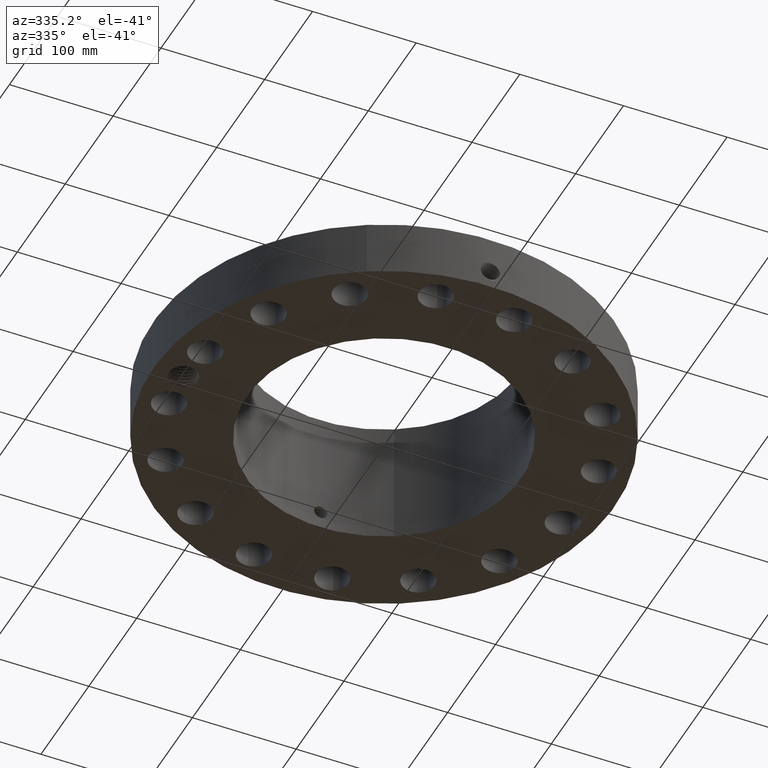
[diagram: clean part render]
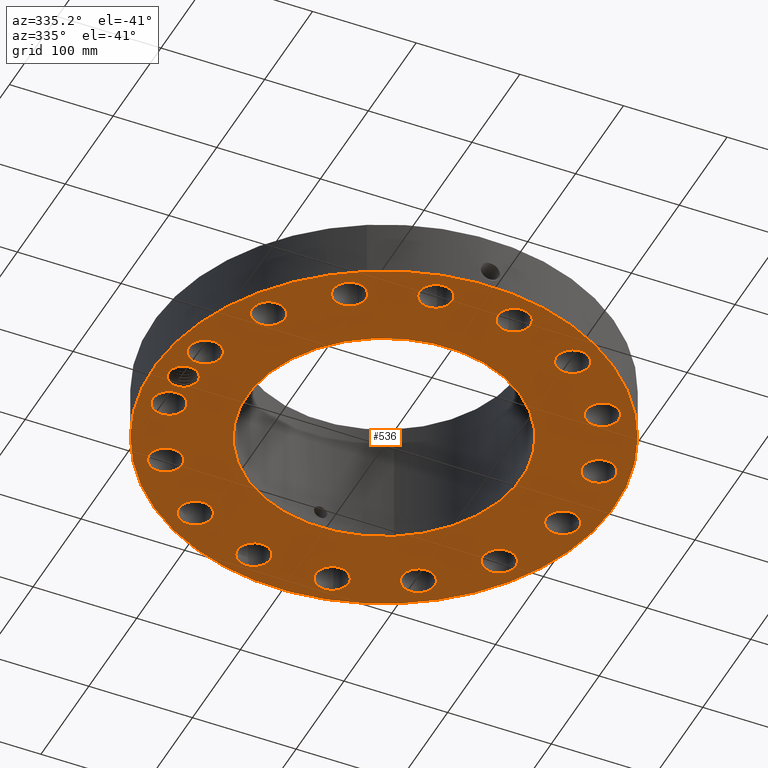
[diagram: same view with one face highlighted and labeled with its STEP entity id]
A machine part, auxiliary view. The second image highlights one B-rep face of the part: STEP entity #536.
In plain terms, the highlighted planar face has unit normal (0, 0, -1).
Its self-contained STEP definition (entity closure, byte-faithful):
#42=AXIS2_PLACEMENT_3D('Circle Axis2P3D',#40,#41,$) ;
#165=AXIS2_PLACEMENT_3D('Plane Axis2P3D',#162,#163,#164) ;
#169=AXIS2_PLACEMENT_3D('Circle Axis2P3D',#167,#168,$) ;
#178=AXIS2_PLACEMENT_3D('Circle Axis2P3D',#176,#177,$) ;
#187=AXIS2_PLACEMENT_3D('Circle Axis2P3D',#185,#186,$) ;
#194=AXIS2_PLACEMENT_3D('Circle Axis2P3D',#192,#193,$) ;
#232=AXIS2_PLACEMENT_3D('Circle Axis2P3D',#230,#231,$) ;
#241=AXIS2_PLACEMENT_3D('Circle Axis2P3D',#239,#240,$) ;
#250=AXIS2_PLACEMENT_3D('Circle Axis2P3D',#248,#249,$) ;
#259=AXIS2_PLACEMENT_3D('Circle Axis2P3D',#257,#258,$) ;
#268=AXIS2_PLACEMENT_3D('Circle Axis2P3D',#266,#267,$) ;
#277=AXIS2_PLACEMENT_3D('Circle Axis2P3D',#275,#276,$) ;
#286=AXIS2_PLACEMENT_3D('Circle Axis2P3D',#284,#285,$) ;
#295=AXIS2_PLACEMENT_3D('Circle Axis2P3D',#293,#294,$) ;
#304=AXIS2_PLACEMENT_3D('Circle Axis2P3D',#302,#303,$) ;
#313=AXIS2_PLACEMENT_3D('Circle Axis2P3D',#311,#312,$) ;
#322=AXIS2_PLACEMENT_3D('Circle Axis2P3D',#320,#321,$) ;
#331=AXIS2_PLACEMENT_3D('Circle Axis2P3D',#329,#330,$) ;
#340=AXIS2_PLACEMENT_3D('Circle Axis2P3D',#338,#339,$) ;
#349=AXIS2_PLACEMENT_3D('Circle Axis2P3D',#347,#348,$) ;
#358=AXIS2_PLACEMENT_3D('Circle Axis2P3D',#356,#357,$) ;
#367=AXIS2_PLACEMENT_3D('Circle Axis2P3D',#365,#366,$) ;
#376=AXIS2_PLACEMENT_3D('Circle Axis2P3D',#374,#375,$) ;
#385=AXIS2_PLACEMENT_3D('Circle Axis2P3D',#383,#384,$) ;
#394=AXIS2_PLACEMENT_3D('Circle Axis2P3D',#392,#393,$) ;
#403=AXIS2_PLACEMENT_3D('Circle Axis2P3D',#401,#402,$) ;
#412=AXIS2_PLACEMENT_3D('Circle Axis2P3D',#410,#411,$) ;
#421=AXIS2_PLACEMENT_3D('Circle Axis2P3D',#419,#420,$) ;
#430=AXIS2_PLACEMENT_3D('Circle Axis2P3D',#428,#429,$) ;
#439=AXIS2_PLACEMENT_3D('Circle Axis2P3D',#437,#438,$) ;
#448=AXIS2_PLACEMENT_3D('Circle Axis2P3D',#446,#447,$) ;
#457=AXIS2_PLACEMENT_3D('Circle Axis2P3D',#455,#456,$) ;
#466=AXIS2_PLACEMENT_3D('Circle Axis2P3D',#464,#465,$) ;
#475=AXIS2_PLACEMENT_3D('Circle Axis2P3D',#473,#474,$) ;
#484=AXIS2_PLACEMENT_3D('Circle Axis2P3D',#482,#483,$) ;
#493=AXIS2_PLACEMENT_3D('Circle Axis2P3D',#491,#492,$) ;
#502=AXIS2_PLACEMENT_3D('Circle Axis2P3D',#500,#501,$) ;
#511=AXIS2_PLACEMENT_3D('Circle Axis2P3D',#509,#510,$) ;
#520=AXIS2_PLACEMENT_3D('Circle Axis2P3D',#518,#519,$) ;
#529=AXIS2_PLACEMENT_3D('Circle Axis2P3D',#527,#528,$) ;
#40=CARTESIAN_POINT('Axis2P3D Location',(0.,0.,0.250000000001)) ;
#44=CARTESIAN_POINT('Vertex',(-4.1949734628,-7.67884741657,0.250000000001)) ;
#46=CARTESIAN_POINT('Vertex',(4.1949734628,7.67884741657,0.250000000001)) ;
#162=CARTESIAN_POINT('Axis2P3D Location',(0.,5.21000000002,0.250000000001)) ;
#167=CARTESIAN_POINT('Axis2P3D Location',(0.,0.,0.250000000001)) ;
#176=CARTESIAN_POINT('Axis2P3D Location',(-7.62500000003,-2.23792987641E-015,0.250000000001)) ;
#180=CARTESIAN_POINT('Vertex',(-8.10959231488,0.264733988163,0.250000000001)) ;
#182=CARTESIAN_POINT('Vertex',(-7.56480221872,0.548898918953,0.250000000001)) ;
#185=CARTESIAN_POINT('Axis2P3D Location',(-7.62500000003,-2.23792987641E-015,0.250000000001)) ;
#189=CARTESIAN_POINT('Vertex',(-7.14040768518,-0.264733988163,0.250000000001)) ;
#192=CARTESIAN_POINT('Axis2P3D Location',(-7.62500000003,-2.23792987641E-015,0.250000000001)) ;
#196=CARTESIAN_POINT('Vertex',(-7.15516984689,0.290126564287,0.250000000001)) ;
#200=CARTESIAN_POINT('Control Point',(-7.32448377518,0.475495884074,0.250000000001)) ;
#201=CARTESIAN_POINT('Control Point',(-7.28443485453,0.447862629432,0.250000000001)) ;
#202=CARTESIAN_POINT('Control Point',(-7.24746086426,0.415953993353,0.250000000001)) ;
#203=CARTESIAN_POINT('Control Point',(-7.21418057762,0.380212204736,0.250000000001)) ;
#204=CARTESIAN_POINT('Control Point',(-7.18379409289,0.339445970979,0.250000000001)) ;
#205=CARTESIAN_POINT('Control Point',(-7.1584276856,0.295855344864,0.250000000001)) ;
#206=CARTESIAN_POINT('Control Point',(-7.15733212918,0.29395096508,0.250000000001)) ;
#207=CARTESIAN_POINT('Control Point',(-7.1562461715,0.292041350384,0.250000000001)) ;
#208=CARTESIAN_POINT('Control Point',(-7.15516984689,0.290126564287,0.250000000001)) ;
#209=CARTESIAN_POINT('Vertex',(-7.32448377518,0.475495884074,0.250000000001)) ;
#213=CARTESIAN_POINT('Control Point',(-7.32448377518,0.475495884074,0.250000000001)) ;
#214=CARTESIAN_POINT('Control Point',(-7.34133991202,0.485220250308,0.250000000001)) ;
#215=CARTESIAN_POINT('Control Point',(-7.3586037324,0.494207507439,0.250000000001)) ;
#216=CARTESIAN_POINT('Control Point',(-7.37623279983,0.502434015486,0.250000000001)) ;
#217=CARTESIAN_POINT('Control Point',(-7.42320261231,0.521916486492,0.250000000001)) ;
#218=CARTESIAN_POINT('Control Point',(-7.47203883605,0.535939978592,0.250000000001)) ;
#219=CARTESIAN_POINT('Control Point',(-7.50272461,0.542452713745,0.250000000001)) ;
#220=CARTESIAN_POINT('Control Point',(-7.53371493089,0.546775207008,0.250000000001)) ;
#221=CARTESIAN_POINT('Control Point',(-7.56480221872,0.548898918953,0.250000000001)) ;
#230=CARTESIAN_POINT('Axis2P3D Location',(7.4784877631,-1.48756370538,0.250000000001)) ;
#234=CARTESIAN_POINT('Vertex',(8.02697686429,-1.78720466701,0.250000000001)) ;
#236=CARTESIAN_POINT('Vertex',(6.92999866192,-1.18792274375,0.250000000001)) ;
#239=CARTESIAN_POINT('Axis2P3D Location',(7.4784877631,-1.48756370538,0.250000000001)) ;
#248=CARTESIAN_POINT('Axis2P3D Location',(0.,0.,0.250000000001)) ;
#252=CARTESIAN_POINT('Vertex',(2.49780705614,4.57220514747,0.250000000001)) ;
#254=CARTESIAN_POINT('Vertex',(-2.49780705614,-4.57220514747,0.250000000001)) ;
#257=CARTESIAN_POINT('Axis2P3D Location',(0.,0.,0.250000000001)) ;
#266=CARTESIAN_POINT('Axis2P3D Location',(6.33995579383,-4.23622302679,0.250000000001)) ;
#270=CARTESIAN_POINT('Vertex',(5.94788557112,-3.74949318338,0.250000000001)) ;
#272=CARTESIAN_POINT('Vertex',(6.73202601655,-4.7229528702,0.250000000001)) ;
#275=CARTESIAN_POINT('Axis2P3D Location',(6.33995579383,-4.23622302679,0.250000000001)) ;
#284=CARTESIAN_POINT('Axis2P3D Location',(4.23622302679,-6.33995579383,0.250000000001)) ;
#288=CARTESIAN_POINT('Vertex',(4.06026081983,-5.74023727509,0.250000000001)) ;
#290=CARTESIAN_POINT('Vertex',(4.41218523376,-6.93967431258,0.250000000001)) ;
#293=CARTESIAN_POINT('Axis2P3D Location',(4.23622302679,-6.33995579383,0.250000000001)) ;
#302=CARTESIAN_POINT('Axis2P3D Location',(1.48756370538,-7.4784877631,0.250000000001)) ;
#306=CARTESIAN_POINT('Vertex',(1.55449816507,-6.85708227704,0.250000000001)) ;
#308=CARTESIAN_POINT('Vertex',(1.42062924568,-8.09989324917,0.250000000001)) ;
#311=CARTESIAN_POINT('Axis2P3D Location',(1.48756370538,-7.4784877631,0.250000000001)) ;
#320=CARTESIAN_POINT('Axis2P3D Location',(-1.48756370538,-7.4784877631,0.250000000001)) ;
#324=CARTESIAN_POINT('Vertex',(-1.18792274375,-6.92999866192,0.250000000001)) ;
#326=CARTESIAN_POINT('Vertex',(-1.78720466701,-8.02697686429,0.250000000001)) ;
#329=CARTESIAN_POINT('Axis2P3D Location',(-1.48756370538,-7.4784877631,0.250000000001)) ;
#338=CARTESIAN_POINT('Axis2P3D Location',(-4.23622302679,-6.33995579383,0.250000000001)) ;
#342=CARTESIAN_POINT('Vertex',(-3.74949318338,-5.94788557112,0.250000000001)) ;
#344=CARTESIAN_POINT('Vertex',(-4.7229528702,-6.73202601655,0.250000000001)) ;
#347=CARTESIAN_POINT('Axis2P3D Location',(-4.23622302679,-6.33995579383,0.250000000001)) ;
#356=CARTESIAN_POINT('Axis2P3D Location',(-6.33995579383,-4.23622302679,0.250000000001)) ;
#360=CARTESIAN_POINT('Vertex',(-5.74023727509,-4.06026081983,0.250000000001)) ;
#362=CARTESIAN_POINT('Vertex',(-6.93967431258,-4.41218523376,0.250000000001)) ;
#365=CARTESIAN_POINT('Axis2P3D Location',(-6.33995579383,-4.23622302679,0.250000000001)) ;
#374=CARTESIAN_POINT('Axis2P3D Location',(-7.4784877631,-1.48756370538,0.250000000001)) ;
#378=CARTESIAN_POINT('Vertex',(-6.85708227704,-1.55449816507,0.250000000001)) ;
#380=CARTESIAN_POINT('Vertex',(-8.09989324917,-1.42062924568,0.250000000001)) ;
#383=CARTESIAN_POINT('Axis2P3D Location',(-7.4784877631,-1.48756370538,0.250000000001)) ;
#392=CARTESIAN_POINT('Axis2P3D Location',(-7.4784877631,1.48756370538,0.250000000001)) ;
#396=CARTESIAN_POINT('Vertex',(-6.92999866192,1.18792274375,0.250000000001)) ;
#398=CARTESIAN_POINT('Vertex',(-8.02697686429,1.78720466701,0.250000000001)) ;
#401=CARTESIAN_POINT('Axis2P3D Location',(-7.4784877631,1.48756370538,0.250000000001)) ;
#410=CARTESIAN_POINT('Axis2P3D Location',(-6.33995579383,4.23622302679,0.250000000001)) ;
#414=CARTESIAN_POINT('Vertex',(-5.94788557112,3.74949318338,0.250000000001)) ;
#416=CARTESIAN_POINT('Vertex',(-6.73202601655,4.7229528702,0.250000000001)) ;
#419=CARTESIAN_POINT('Axis2P3D Location',(-6.33995579383,4.23622302679,0.250000000001)) ;
#428=CARTESIAN_POINT('Axis2P3D Location',(-4.23622302679,6.33995579383,0.250000000001)) ;
#432=CARTESIAN_POINT('Vertex',(-4.06026081983,5.74023727509,0.250000000001)) ;
#434=CARTESIAN_POINT('Vertex',(-4.41218523376,6.93967431258,0.250000000001)) ;
#437=CARTESIAN_POINT('Axis2P3D Location',(-4.23622302679,6.33995579383,0.250000000001)) ;
#446=CARTESIAN_POINT('Axis2P3D Location',(-1.48756370538,7.4784877631,0.250000000001)) ;
#450=CARTESIAN_POINT('Vertex',(-1.55449816507,6.85708227704,0.250000000001)) ;
#452=CARTESIAN_POINT('Vertex',(-1.42062924568,8.09989324917,0.250000000001)) ;
#455=CARTESIAN_POINT('Axis2P3D Location',(-1.48756370538,7.4784877631,0.250000000001)) ;
#464=CARTESIAN_POINT('Axis2P3D Location',(1.48756370538,7.4784877631,0.250000000001)) ;
#468=CARTESIAN_POINT('Vertex',(1.18792274375,6.92999866192,0.250000000001)) ;
#470=CARTESIAN_POINT('Vertex',(1.78720466701,8.02697686429,0.250000000001)) ;
#473=CARTESIAN_POINT('Axis2P3D Location',(1.48756370538,7.4784877631,0.250000000001)) ;
#482=CARTESIAN_POINT('Axis2P3D Location',(4.23622302679,6.33995579383,0.250000000001)) ;
#486=CARTESIAN_POINT('Vertex',(3.74949318338,5.94788557112,0.250000000001)) ;
#488=CARTESIAN_POINT('Vertex',(4.7229528702,6.73202601655,0.250000000001)) ;
#491=CARTESIAN_POINT('Axis2P3D Location',(4.23622302679,6.33995579383,0.250000000001)) ;
#500=CARTESIAN_POINT('Axis2P3D Location',(6.33995579383,4.23622302679,0.250000000001)) ;
#504=CARTESIAN_POINT('Vertex',(5.74023727509,4.06026081983,0.250000000001)) ;
#506=CARTESIAN_POINT('Vertex',(6.93967431258,4.41218523376,0.250000000001)) ;
#509=CARTESIAN_POINT('Axis2P3D Location',(6.33995579383,4.23622302679,0.250000000001)) ;
#518=CARTESIAN_POINT('Axis2P3D Location',(7.4784877631,1.48756370538,0.250000000001)) ;
#522=CARTESIAN_POINT('Vertex',(6.85708227704,1.55449816507,0.250000000001)) ;
#524=CARTESIAN_POINT('Vertex',(8.09989324917,1.42062924568,0.250000000001)) ;
#527=CARTESIAN_POINT('Axis2P3D Location',(7.4784877631,1.48756370538,0.250000000001)) ;
#41=DIRECTION('Axis2P3D Direction',(0.,0.,-0.0393700787402)) ;
#163=DIRECTION('Axis2P3D Direction',(0.,0.,-0.0393700787402)) ;
#164=DIRECTION('Axis2P3D XDirection',(0.0393700787402,0.,0.)) ;
#168=DIRECTION('Axis2P3D Direction',(0.,0.,-0.0393700787402)) ;
#177=DIRECTION('Axis2P3D Direction',(0.,0.,-0.0393700787402)) ;
#186=DIRECTION('Axis2P3D Direction',(0.,0.,-0.0393700787402)) ;
#193=DIRECTION('Axis2P3D Direction',(0.,0.,-0.0393700787402)) ;
#231=DIRECTION('Axis2P3D Direction',(0.,0.,-0.0393700787402)) ;
#240=DIRECTION('Axis2P3D Direction',(0.,0.,-0.0393700787402)) ;
#249=DIRECTION('Axis2P3D Direction',(0.,0.,-0.0393700787402)) ;
#258=DIRECTION('Axis2P3D Direction',(0.,0.,-0.0393700787402)) ;
#267=DIRECTION('Axis2P3D Direction',(0.,0.,-0.0393700787402)) ;
#276=DIRECTION('Axis2P3D Direction',(0.,0.,-0.0393700787402)) ;
#285=DIRECTION('Axis2P3D Direction',(0.,0.,-0.0393700787402)) ;
#294=DIRECTION('Axis2P3D Direction',(0.,0.,-0.0393700787402)) ;
#303=DIRECTION('Axis2P3D Direction',(0.,0.,-0.0393700787402)) ;
#312=DIRECTION('Axis2P3D Direction',(0.,0.,-0.0393700787402)) ;
#321=DIRECTION('Axis2P3D Direction',(0.,0.,-0.0393700787402)) ;
#330=DIRECTION('Axis2P3D Direction',(0.,0.,-0.0393700787402)) ;
#339=DIRECTION('Axis2P3D Direction',(0.,0.,-0.0393700787402)) ;
#348=DIRECTION('Axis2P3D Direction',(0.,0.,-0.0393700787402)) ;
#357=DIRECTION('Axis2P3D Direction',(0.,0.,-0.0393700787402)) ;
#366=DIRECTION('Axis2P3D Direction',(0.,0.,-0.0393700787402)) ;
#375=DIRECTION('Axis2P3D Direction',(0.,0.,-0.0393700787402)) ;
#384=DIRECTION('Axis2P3D Direction',(0.,0.,-0.0393700787402)) ;
#393=DIRECTION('Axis2P3D Direction',(0.,0.,-0.0393700787402)) ;
#402=DIRECTION('Axis2P3D Direction',(0.,0.,-0.0393700787402)) ;
#411=DIRECTION('Axis2P3D Direction',(0.,0.,-0.0393700787402)) ;
#420=DIRECTION('Axis2P3D Direction',(0.,0.,-0.0393700787402)) ;
#429=DIRECTION('Axis2P3D Direction',(0.,0.,-0.0393700787402)) ;
#438=DIRECTION('Axis2P3D Direction',(0.,0.,-0.0393700787402)) ;
#447=DIRECTION('Axis2P3D Direction',(0.,0.,-0.0393700787402)) ;
#456=DIRECTION('Axis2P3D Direction',(0.,0.,-0.0393700787402)) ;
#465=DIRECTION('Axis2P3D Direction',(0.,0.,-0.0393700787402)) ;
#474=DIRECTION('Axis2P3D Direction',(0.,0.,-0.0393700787402)) ;
#483=DIRECTION('Axis2P3D Direction',(0.,0.,-0.0393700787402)) ;
#492=DIRECTION('Axis2P3D Direction',(0.,0.,-0.0393700787402)) ;
#501=DIRECTION('Axis2P3D Direction',(0.,0.,-0.0393700787402)) ;
#510=DIRECTION('Axis2P3D Direction',(0.,0.,-0.0393700787402)) ;
#519=DIRECTION('Axis2P3D Direction',(0.,0.,-0.0393700787402)) ;
#528=DIRECTION('Axis2P3D Direction',(0.,0.,-0.0393700787402)) ;
#173=ORIENTED_EDGE('',*,*,#48,.T.) ;
#174=ORIENTED_EDGE('',*,*,#171,.T.) ;
#224=ORIENTED_EDGE('',*,*,#184,.F.) ;
#225=ORIENTED_EDGE('',*,*,#191,.F.) ;
#226=ORIENTED_EDGE('',*,*,#198,.F.) ;
#227=ORIENTED_EDGE('',*,*,#211,.F.) ;
#228=ORIENTED_EDGE('',*,*,#222,.T.) ;
#245=ORIENTED_EDGE('',*,*,#238,.F.) ;
#246=ORIENTED_EDGE('',*,*,#243,.F.) ;
#263=ORIENTED_EDGE('',*,*,#256,.F.) ;
#264=ORIENTED_EDGE('',*,*,#261,.F.) ;
#281=ORIENTED_EDGE('',*,*,#274,.F.) ;
#282=ORIENTED_EDGE('',*,*,#279,.F.) ;
#299=ORIENTED_EDGE('',*,*,#292,.F.) ;
#300=ORIENTED_EDGE('',*,*,#297,.F.) ;
#317=ORIENTED_EDGE('',*,*,#310,.F.) ;
#318=ORIENTED_EDGE('',*,*,#315,.F.) ;
#335=ORIENTED_EDGE('',*,*,#328,.F.) ;
#336=ORIENTED_EDGE('',*,*,#333,.F.) ;
#353=ORIENTED_EDGE('',*,*,#346,.F.) ;
#354=ORIENTED_EDGE('',*,*,#351,.F.) ;
#371=ORIENTED_EDGE('',*,*,#364,.F.) ;
#372=ORIENTED_EDGE('',*,*,#369,.F.) ;
#389=ORIENTED_EDGE('',*,*,#382,.F.) ;
#390=ORIENTED_EDGE('',*,*,#387,.F.) ;
#407=ORIENTED_EDGE('',*,*,#400,.F.) ;
#408=ORIENTED_EDGE('',*,*,#405,.F.) ;
#425=ORIENTED_EDGE('',*,*,#418,.F.) ;
#426=ORIENTED_EDGE('',*,*,#423,.F.) ;
#443=ORIENTED_EDGE('',*,*,#436,.F.) ;
#444=ORIENTED_EDGE('',*,*,#441,.F.) ;
#461=ORIENTED_EDGE('',*,*,#454,.F.) ;
#462=ORIENTED_EDGE('',*,*,#459,.F.) ;
#479=ORIENTED_EDGE('',*,*,#472,.F.) ;
#480=ORIENTED_EDGE('',*,*,#477,.F.) ;
#497=ORIENTED_EDGE('',*,*,#490,.F.) ;
#498=ORIENTED_EDGE('',*,*,#495,.F.) ;
#515=ORIENTED_EDGE('',*,*,#508,.F.) ;
#516=ORIENTED_EDGE('',*,*,#513,.F.) ;
#533=ORIENTED_EDGE('',*,*,#526,.F.) ;
#534=ORIENTED_EDGE('',*,*,#531,.F.) ;
#229=FACE_BOUND('',#223,.T.) ;
#247=FACE_BOUND('',#244,.T.) ;
#265=FACE_BOUND('',#262,.T.) ;
#283=FACE_BOUND('',#280,.T.) ;
#301=FACE_BOUND('',#298,.T.) ;
#319=FACE_BOUND('',#316,.T.) ;
#337=FACE_BOUND('',#334,.T.) ;
#355=FACE_BOUND('',#352,.T.) ;
#373=FACE_BOUND('',#370,.T.) ;
#391=FACE_BOUND('',#388,.T.) ;
#409=FACE_BOUND('',#406,.T.) ;
#427=FACE_BOUND('',#424,.T.) ;
#445=FACE_BOUND('',#442,.T.) ;
#463=FACE_BOUND('',#460,.T.) ;
#481=FACE_BOUND('',#478,.T.) ;
#499=FACE_BOUND('',#496,.T.) ;
#517=FACE_BOUND('',#514,.T.) ;
#535=FACE_BOUND('',#532,.T.) ;
#536=ADVANCED_FACE('PartBody',(#175,#229,#247,#265,#283,#301,#319,#337,#355,#373,#391,#409,#427,#445,#463,#481,#499,#517,#535),#166,.T.) ;
#199=B_SPLINE_CURVE_WITH_KNOTS('',5,(#200,#201,#202,#203,#204,#205,#206,#207,#208),.UNSPECIFIED.,.F.,.U.,(6,3,6),(0.,8.47699330531,8.86312683665),.UNSPECIFIED.) ;
#212=B_SPLINE_CURVE_WITH_KNOTS('',5,(#213,#214,#215,#216,#217,#218,#219,#220,#221),.UNSPECIFIED.,.F.,.U.,(6,3,6),(0.,3.39030734204,8.87175422998),.UNSPECIFIED.) ;
#43=CIRCLE('generated circle',#42,8.75000000003) ;
#170=CIRCLE('generated circle',#169,8.75000000003) ;
#179=CIRCLE('generated circle',#178,0.552190000002) ;
#188=CIRCLE('generated circle',#187,0.552190000002) ;
#195=CIRCLE('generated circle',#194,0.552190000002) ;
#233=CIRCLE('generated circle',#232,0.625000000002) ;
#242=CIRCLE('generated circle',#241,0.625000000002) ;
#251=CIRCLE('generated circle',#250,5.21000000002) ;
#260=CIRCLE('generated circle',#259,5.21000000002) ;
#269=CIRCLE('generated circle',#268,0.625000000003) ;
#278=CIRCLE('generated circle',#277,0.625000000003) ;
#287=CIRCLE('generated circle',#286,0.625000000002) ;
#296=CIRCLE('generated circle',#295,0.625000000002) ;
#305=CIRCLE('generated circle',#304,0.625000000003) ;
#314=CIRCLE('generated circle',#313,0.625000000003) ;
#323=CIRCLE('generated circle',#322,0.625000000002) ;
#332=CIRCLE('generated circle',#331,0.625000000002) ;
#341=CIRCLE('generated circle',#340,0.625000000003) ;
#350=CIRCLE('generated circle',#349,0.625000000003) ;
#359=CIRCLE('generated circle',#358,0.625000000002) ;
#368=CIRCLE('generated circle',#367,0.625000000002) ;
#377=CIRCLE('generated circle',#376,0.625000000003) ;
#386=CIRCLE('generated circle',#385,0.625000000003) ;
#395=CIRCLE('generated circle',#394,0.625000000002) ;
#404=CIRCLE('generated circle',#403,0.625000000002) ;
#413=CIRCLE('generated circle',#412,0.625000000003) ;
#422=CIRCLE('generated circle',#421,0.625000000003) ;
#431=CIRCLE('generated circle',#430,0.625000000002) ;
#440=CIRCLE('generated circle',#439,0.625000000002) ;
#449=CIRCLE('generated circle',#448,0.625000000003) ;
#458=CIRCLE('generated circle',#457,0.625000000003) ;
#467=CIRCLE('generated circle',#466,0.625000000002) ;
#476=CIRCLE('generated circle',#475,0.625000000002) ;
#485=CIRCLE('generated circle',#484,0.625000000003) ;
#494=CIRCLE('generated circle',#493,0.625000000003) ;
#503=CIRCLE('generated circle',#502,0.625000000003) ;
#512=CIRCLE('generated circle',#511,0.625000000003) ;
#521=CIRCLE('generated circle',#520,0.625000000003) ;
#530=CIRCLE('generated circle',#529,0.625000000003) ;
#48=EDGE_CURVE('',#45,#47,#43,.T.) ;
#171=EDGE_CURVE('',#47,#45,#170,.T.) ;
#184=EDGE_CURVE('',#181,#183,#179,.T.) ;
#191=EDGE_CURVE('',#190,#181,#188,.T.) ;
#198=EDGE_CURVE('',#197,#190,#195,.T.) ;
#211=EDGE_CURVE('',#210,#197,#199,.T.) ;
#222=EDGE_CURVE('',#210,#183,#212,.T.) ;
#238=EDGE_CURVE('',#235,#237,#233,.T.) ;
#243=EDGE_CURVE('',#237,#235,#242,.T.) ;
#256=EDGE_CURVE('',#253,#255,#251,.T.) ;
#261=EDGE_CURVE('',#255,#253,#260,.T.) ;
#274=EDGE_CURVE('',#271,#273,#269,.T.) ;
#279=EDGE_CURVE('',#273,#271,#278,.T.) ;
#292=EDGE_CURVE('',#289,#291,#287,.T.) ;
#297=EDGE_CURVE('',#291,#289,#296,.T.) ;
#310=EDGE_CURVE('',#307,#309,#305,.T.) ;
#315=EDGE_CURVE('',#309,#307,#314,.T.) ;
#328=EDGE_CURVE('',#325,#327,#323,.T.) ;
#333=EDGE_CURVE('',#327,#325,#332,.T.) ;
#346=EDGE_CURVE('',#343,#345,#341,.T.) ;
#351=EDGE_CURVE('',#345,#343,#350,.T.) ;
#364=EDGE_CURVE('',#361,#363,#359,.T.) ;
#369=EDGE_CURVE('',#363,#361,#368,.T.) ;
#382=EDGE_CURVE('',#379,#381,#377,.T.) ;
#387=EDGE_CURVE('',#381,#379,#386,.T.) ;
#400=EDGE_CURVE('',#397,#399,#395,.T.) ;
#405=EDGE_CURVE('',#399,#397,#404,.T.) ;
#418=EDGE_CURVE('',#415,#417,#413,.T.) ;
#423=EDGE_CURVE('',#417,#415,#422,.T.) ;
#436=EDGE_CURVE('',#433,#435,#431,.T.) ;
#441=EDGE_CURVE('',#435,#433,#440,.T.) ;
#454=EDGE_CURVE('',#451,#453,#449,.T.) ;
#459=EDGE_CURVE('',#453,#451,#458,.T.) ;
#472=EDGE_CURVE('',#469,#471,#467,.T.) ;
#477=EDGE_CURVE('',#471,#469,#476,.T.) ;
#490=EDGE_CURVE('',#487,#489,#485,.T.) ;
#495=EDGE_CURVE('',#489,#487,#494,.T.) ;
#508=EDGE_CURVE('',#505,#507,#503,.T.) ;
#513=EDGE_CURVE('',#507,#505,#512,.T.) ;
#526=EDGE_CURVE('',#523,#525,#521,.T.) ;
#531=EDGE_CURVE('',#525,#523,#530,.T.) ;
#172=EDGE_LOOP('',(#173,#174)) ;
#223=EDGE_LOOP('',(#224,#225,#226,#227,#228)) ;
#244=EDGE_LOOP('',(#245,#246)) ;
#262=EDGE_LOOP('',(#263,#264)) ;
#280=EDGE_LOOP('',(#281,#282)) ;
#298=EDGE_LOOP('',(#299,#300)) ;
#316=EDGE_LOOP('',(#317,#318)) ;
#334=EDGE_LOOP('',(#335,#336)) ;
#352=EDGE_LOOP('',(#353,#354)) ;
#370=EDGE_LOOP('',(#371,#372)) ;
#388=EDGE_LOOP('',(#389,#390)) ;
#406=EDGE_LOOP('',(#407,#408)) ;
#424=EDGE_LOOP('',(#425,#426)) ;
#442=EDGE_LOOP('',(#443,#444)) ;
#460=EDGE_LOOP('',(#461,#462)) ;
#478=EDGE_LOOP('',(#479,#480)) ;
#496=EDGE_LOOP('',(#497,#498)) ;
#514=EDGE_LOOP('',(#515,#516)) ;
#532=EDGE_LOOP('',(#533,#534)) ;
#175=FACE_OUTER_BOUND('',#172,.T.) ;
#166=PLANE('',#165) ;
#45=VERTEX_POINT('',#44) ;
#47=VERTEX_POINT('',#46) ;
#181=VERTEX_POINT('',#180) ;
#183=VERTEX_POINT('',#182) ;
#190=VERTEX_POINT('',#189) ;
#197=VERTEX_POINT('',#196) ;
#210=VERTEX_POINT('',#209) ;
#235=VERTEX_POINT('',#234) ;
#237=VERTEX_POINT('',#236) ;
#253=VERTEX_POINT('',#252) ;
#255=VERTEX_POINT('',#254) ;
#271=VERTEX_POINT('',#270) ;
#273=VERTEX_POINT('',#272) ;
#289=VERTEX_POINT('',#288) ;
#291=VERTEX_POINT('',#290) ;
#307=VERTEX_POINT('',#306) ;
#309=VERTEX_POINT('',#308) ;
#325=VERTEX_POINT('',#324) ;
#327=VERTEX_POINT('',#326) ;
#343=VERTEX_POINT('',#342) ;
#345=VERTEX_POINT('',#344) ;
#361=VERTEX_POINT('',#360) ;
#363=VERTEX_POINT('',#362) ;
#379=VERTEX_POINT('',#378) ;
#381=VERTEX_POINT('',#380) ;
#397=VERTEX_POINT('',#396) ;
#399=VERTEX_POINT('',#398) ;
#415=VERTEX_POINT('',#414) ;
#417=VERTEX_POINT('',#416) ;
#433=VERTEX_POINT('',#432) ;
#435=VERTEX_POINT('',#434) ;
#451=VERTEX_POINT('',#450) ;
#453=VERTEX_POINT('',#452) ;
#469=VERTEX_POINT('',#468) ;
#471=VERTEX_POINT('',#470) ;
#487=VERTEX_POINT('',#486) ;
#489=VERTEX_POINT('',#488) ;
#505=VERTEX_POINT('',#504) ;
#507=VERTEX_POINT('',#506) ;
#523=VERTEX_POINT('',#522) ;
#525=VERTEX_POINT('',#524) ;